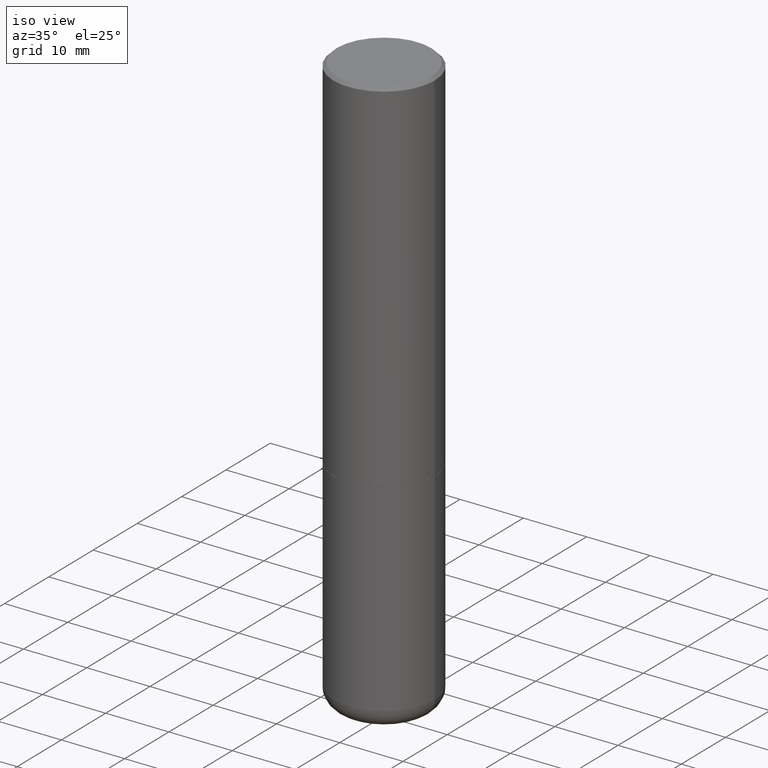
[diagram: clean part render]
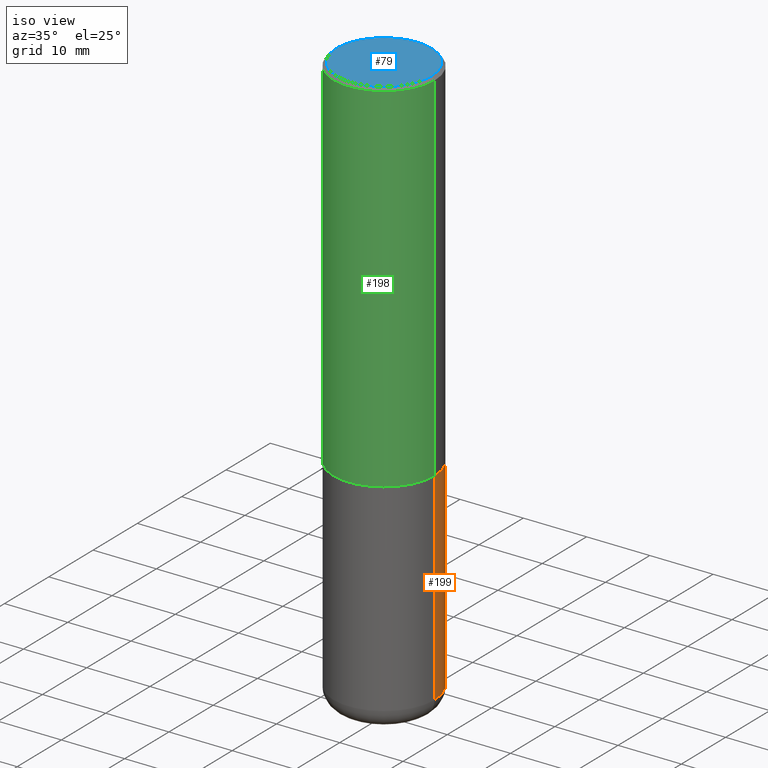
[diagram: same view with three faces highlighted in distinct colors, each labeled with its STEP entity id]
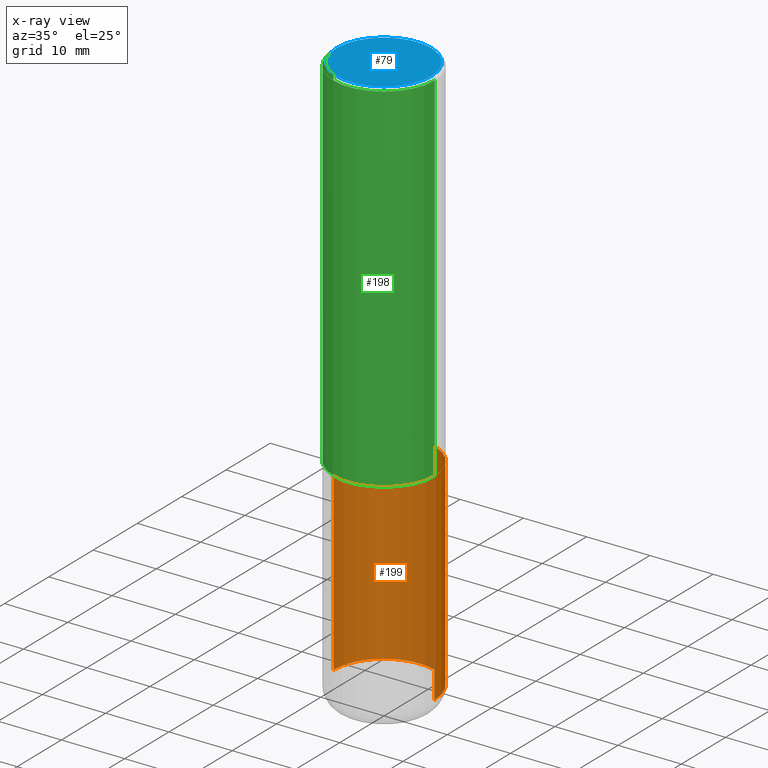
[diagram: x-ray of the same camera — body ghosted, the three highlighted faces saturated]
A machine part, iso view with three faces highlighted in distinct colors.
The next image is the same camera in x-ray (body ghosted, the three faces saturated) — at least one of them is partly hidden behind the body in this view.
Their STEP definitions:

[orange] entity #199 — the highlighted cylindrical surface (partial cylindrical patch) has radius 7.9997 mm, axis along (-0, 0, 1).
#9 = DIRECTION ( 'NONE',  ( -2.445468806185136597E-29, 3.491481338843145583E-15, 1.000000000000000000 ) ) ;
#14 = LINE ( 'NONE', #132, #363 ) ;
#36 = LINE ( 'NONE', #161, #99 ) ;
#43 = DIRECTION ( 'NONE',  ( 1.000000000000000000, -6.982962677686263555E-15, 0.000000000000000000 ) ) ;
#63 = CARTESIAN_POINT ( 'NONE',  ( -0.3149500000000000077, -7.796488447491823147E-15, -2.243999999999999773 ) ) ;
#72 = EDGE_CURVE ( 'NONE', #206, #268, #14, .T. ) ;
#92 = CIRCLE ( 'NONE', #281, 0.3149500000000000077 ) ;
#99 = VECTOR ( 'NONE', #388, 39.37007874015748143 ) ;
#104 = VERTEX_POINT ( 'NONE', #126 ) ;
#109 = DIRECTION ( 'NONE',  ( 1.000000000000000000, -6.982962677686266711E-15, 0.000000000000000000 ) ) ;
#113 = ORIENTED_EDGE ( 'NONE', *, *, #72, .T. ) ;
#126 = CARTESIAN_POINT ( 'NONE',  ( 0.3149499999999998967, -1.443308555850978615E-14, -3.503899999999999793 ) ) ;
#129 = CARTESIAN_POINT ( 'NONE',  ( -0.3149499999999998967, -9.995947116896063452E-15, -3.503899999999999793 ) ) ;
#132 = CARTESIAN_POINT ( 'NONE',  ( -0.3149500000000000077, 2.237854346276435590E-15, -1.549218606675782676E-29 ) ) ;
#137 = EDGE_CURVE ( 'NONE', #260, #268, #92, .T. ) ;
#161 = CARTESIAN_POINT ( 'NONE',  ( 0.3149500000000000077, -2.199284095337289871E-15, 1.535751875536930130E-29 ) ) ;
#163 = EDGE_LOOP ( 'NONE', ( #233, #113, #414, #291 ) ) ;
#169 = DIRECTION ( 'NONE',  ( 1.000000000000000000, -6.982962677686266711E-15, 4.876176775795936353E-29 ) ) ;
#195 = CYLINDRICAL_SURFACE ( 'NONE', #331, 0.3149500000000000077 ) ;
#199 = ADVANCED_FACE ( 'NONE', ( #395 ), #195, .T. ) ;
#202 = DIRECTION ( 'NONE',  ( -2.445468806185136597E-29, 3.491481338843145583E-15, 1.000000000000000000 ) ) ;
#206 = VERTEX_POINT ( 'NONE', #129 ) ;
#233 = ORIENTED_EDGE ( 'NONE', *, *, #249, .T. ) ;
#249 = EDGE_CURVE ( 'NONE', #104, #206, #318, .T. ) ;
#253 = CARTESIAN_POINT ( 'NONE',  ( 8.568678149992099474E-29, -1.223380146317249786E-14, -3.503899999999999793 ) ) ;
#260 = VERTEX_POINT ( 'NONE', #350 ) ;
#268 = VERTEX_POINT ( 'NONE', #63 ) ;
#281 = AXIS2_PLACEMENT_3D ( 'NONE', #369, #202, #109 ) ;
#288 = DIRECTION ( 'NONE',  ( -2.445468806185136877E-29, 3.491481338843145188E-15, 1.000000000000000000 ) ) ;
#291 = ORIENTED_EDGE ( 'NONE', *, *, #303, .F. ) ;
#303 = EDGE_CURVE ( 'NONE', #104, #260, #36, .T. ) ;
#313 = DIRECTION ( 'NONE',  ( -2.445468806185136597E-29, 3.491481338843145583E-15, 1.000000000000000000 ) ) ;
#318 = CIRCLE ( 'NONE', #344, 0.3149500000000000077 ) ;
#331 = AXIS2_PLACEMENT_3D ( 'NONE', #360, #313, #169 ) ;
#344 = AXIS2_PLACEMENT_3D ( 'NONE', #253, #9, #43 ) ;
#350 = CARTESIAN_POINT ( 'NONE',  ( 0.3149500000000000077, -1.003416821970130712E-14, -2.243999999999999773 ) ) ;
#360 = CARTESIAN_POINT ( 'NONE',  ( 0.000000000000000000, 0.000000000000000000, 0.000000000000000000 ) ) ;
#363 = VECTOR ( 'NONE', #288, 39.37007874015748143 ) ;
#369 = CARTESIAN_POINT ( 'NONE',  ( 5.487632001079445967E-29, -7.834884124364017250E-15, -2.243999999999999773 ) ) ;
#388 = DIRECTION ( 'NONE',  ( -2.445468806185136877E-29, 3.491481338843145188E-15, 1.000000000000000000 ) ) ;
#395 = FACE_OUTER_BOUND ( 'NONE', #163, .T. ) ;
#414 = ORIENTED_EDGE ( 'NONE', *, *, #137, .F. ) ;

[blue] entity #79 — the highlighted planar face has unit normal (0, -0, -1).
#16 = FACE_OUTER_BOUND ( 'NONE', #28, .T. ) ;
#28 = EDGE_LOOP ( 'NONE', ( #231, #300 ) ) ;
#41 = CIRCLE ( 'NONE', #390, 0.2949499999999998234 ) ;
#78 = CARTESIAN_POINT ( 'NONE',  ( -4.384175940207923203E-45, 6.259441315597878405E-31, 1.792775245842172799E-16 ) ) ;
#79 = ADVANCED_FACE ( 'NONE', ( #16 ), #368, .F. ) ;
#88 = DIRECTION ( 'NONE',  ( 2.438088387897960049E-29, -3.491481338843145188E-15, -1.000000000000000000 ) ) ;
#103 = DIRECTION ( 'NONE',  ( 1.000000000000000000, -6.982962677686267499E-15, 4.874125435057324435E-29 ) ) ;
#117 = EDGE_CURVE ( 'NONE', #150, #378, #381, .T. ) ;
#119 = DIRECTION ( 'NONE',  ( -2.445468806185136597E-29, 3.491481338843145583E-15, 1.000000000000000000 ) ) ;
#133 = CARTESIAN_POINT ( 'NONE',  ( 0.2949499999999998234, -2.127023677808859286E-15, 1.792775245842319231E-16 ) ) ;
#140 = CARTESIAN_POINT ( 'NONE',  ( -0.2949499999999998234, 2.094539655171995318E-15, 1.792775245842027353E-16 ) ) ;
#150 = VERTEX_POINT ( 'NONE', #133 ) ;
#175 = AXIS2_PLACEMENT_3D ( 'NONE', #297, #88, #210 ) ;
#200 = DIRECTION ( 'NONE',  ( -2.445468806185136597E-29, 3.491481338843145583E-15, 1.000000000000000000 ) ) ;
#210 = DIRECTION ( 'NONE',  ( -1.000000000000000000, 6.982962677686265922E-15, -4.876176775795935793E-29 ) ) ;
#225 = AXIS2_PLACEMENT_3D ( 'NONE', #415, #119, #239 ) ;
#231 = ORIENTED_EDGE ( 'NONE', *, *, #337, .T. ) ;
#239 = DIRECTION ( 'NONE',  ( 1.000000000000000000, -6.982962677686267499E-15, 4.874125435057324435E-29 ) ) ;
#297 = CARTESIAN_POINT ( 'NONE',  ( 2.059624841783562880E-15, 0.2949499999999998234, -9.401736585996764239E-16 ) ) ;
#300 = ORIENTED_EDGE ( 'NONE', *, *, #117, .T. ) ;
#337 = EDGE_CURVE ( 'NONE', #378, #150, #41, .T. ) ;
#368 = PLANE ( 'NONE',  #175 ) ;
#378 = VERTEX_POINT ( 'NONE', #140 ) ;
#381 = CIRCLE ( 'NONE', #225, 0.2949499999999998234 ) ;
#390 = AXIS2_PLACEMENT_3D ( 'NONE', #78, #200, #103 ) ;
#415 = CARTESIAN_POINT ( 'NONE',  ( -4.384175940207923203E-45, 6.259441315597878405E-31, 1.792775245842172799E-16 ) ) ;

[green] entity #198 — the highlighted cylindrical surface (partial cylindrical patch) has radius 7.9997 mm, axis along (-0, 0, 1).
#5 = CARTESIAN_POINT ( 'NONE',  ( 0.3149500000000002853, -1.003067673836246727E-14, -2.242999999999999883 ) ) ;
#8 = CARTESIAN_POINT ( 'NONE',  ( 0.3149500000000000077, -2.230543471175007450E-15, -0.02000000000000006981 ) ) ;
#13 = EDGE_CURVE ( 'NONE', #211, #258, #276, .T. ) ;
#39 = VECTOR ( 'NONE', #54, 39.37007874015748143 ) ;
#54 = DIRECTION ( 'NONE',  ( -2.445468806185136877E-29, 3.491481338843145188E-15, 1.000000000000000000 ) ) ;
#57 = ORIENTED_EDGE ( 'NONE', *, *, #13, .F. ) ;
#59 = EDGE_CURVE ( 'NONE', #211, #102, #296, .T. ) ;
#64 = CARTESIAN_POINT ( 'NONE',  ( -0.3149500000000000077, 2.129454468560426573E-15, -0.02000000000000006981 ) ) ;
#65 = CARTESIAN_POINT ( 'NONE',  ( 5.485186532273261485E-29, -7.831392643025175821E-15, -2.242999999999999883 ) ) ;
#81 = DIRECTION ( 'NONE',  ( -2.445468806185136877E-29, 3.491481338843145188E-15, 1.000000000000000000 ) ) ;
#95 = CARTESIAN_POINT ( 'NONE',  ( 0.000000000000000000, 0.000000000000000000, 0.000000000000000000 ) ) ;
#101 = DIRECTION ( 'NONE',  ( 1.000000000000000000, -6.982962677686267499E-15, 0.000000000000000000 ) ) ;
#102 = VERTEX_POINT ( 'NONE', #5 ) ;
#139 = DIRECTION ( 'NONE',  ( 1.000000000000000000, -6.982962677686266711E-15, 0.000000000000000000 ) ) ;
#144 = DIRECTION ( 'NONE',  ( -2.445468806185136597E-29, 3.491481338843145583E-15, 1.000000000000000000 ) ) ;
#154 = EDGE_CURVE ( 'NONE', #258, #321, #222, .T. ) ;
#173 = CARTESIAN_POINT ( 'NONE',  ( -0.3149500000000001743, 2.237854346276436774E-15, -1.549218606675783237E-29 ) ) ;
#176 = VECTOR ( 'NONE', #81, 39.37007874015748143 ) ;
#180 = CARTESIAN_POINT ( 'NONE',  ( 4.890937612370289799E-31, -6.982962677686315028E-17, -0.02000000000000006981 ) ) ;
#198 = ADVANCED_FACE ( 'NONE', ( #219 ), #311, .T. ) ;
#201 = EDGE_LOOP ( 'NONE', ( #57, #228, #245, #286 ) ) ;
#205 = LINE ( 'NONE', #335, #39 ) ;
#211 = VERTEX_POINT ( 'NONE', #252 ) ;
#219 = FACE_OUTER_BOUND ( 'NONE', #201, .T. ) ;
#222 = CIRCLE ( 'NONE', #353, 0.3149500000000000077 ) ;
#228 = ORIENTED_EDGE ( 'NONE', *, *, #59, .T. ) ;
#245 = ORIENTED_EDGE ( 'NONE', *, *, #396, .T. ) ;
#248 = DIRECTION ( 'NONE',  ( 1.000000000000000000, -6.982962677686265922E-15, 4.876176775795935232E-29 ) ) ;
#252 = CARTESIAN_POINT ( 'NONE',  ( -0.3149500000000002853, -1.712756788624580222E-15, -2.242999999999999883 ) ) ;
#258 = VERTEX_POINT ( 'NONE', #64 ) ;
#270 = AXIS2_PLACEMENT_3D ( 'NONE', #65, #320, #101 ) ;
#272 = AXIS2_PLACEMENT_3D ( 'NONE', #95, #315, #248 ) ;
#276 = LINE ( 'NONE', #173, #176 ) ;
#286 = ORIENTED_EDGE ( 'NONE', *, *, #154, .F. ) ;
#296 = CIRCLE ( 'NONE', #270, 0.3149500000000002853 ) ;
#311 = CYLINDRICAL_SURFACE ( 'NONE', #272, 0.3149500000000001743 ) ;
#315 = DIRECTION ( 'NONE',  ( -2.445468806185136597E-29, 3.491481338843145583E-15, 1.000000000000000000 ) ) ;
#320 = DIRECTION ( 'NONE',  ( -2.445468806185136597E-29, 3.491481338843145583E-15, 1.000000000000000000 ) ) ;
#321 = VERTEX_POINT ( 'NONE', #8 ) ;
#335 = CARTESIAN_POINT ( 'NONE',  ( 0.3149500000000001743, -2.199284095337290660E-15, 1.535751875536930690E-29 ) ) ;
#353 = AXIS2_PLACEMENT_3D ( 'NONE', #180, #144, #139 ) ;
#396 = EDGE_CURVE ( 'NONE', #102, #321, #205, .T. ) ;